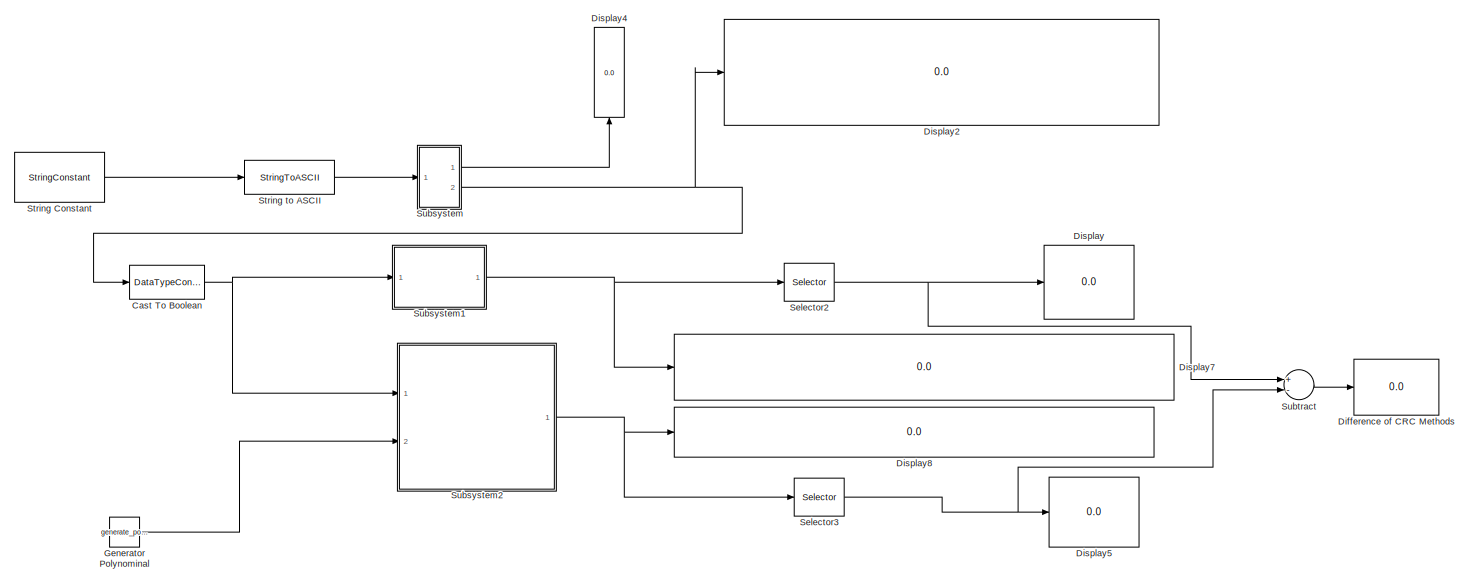
[diagram: root canvas - part 1/2, full width, top band]
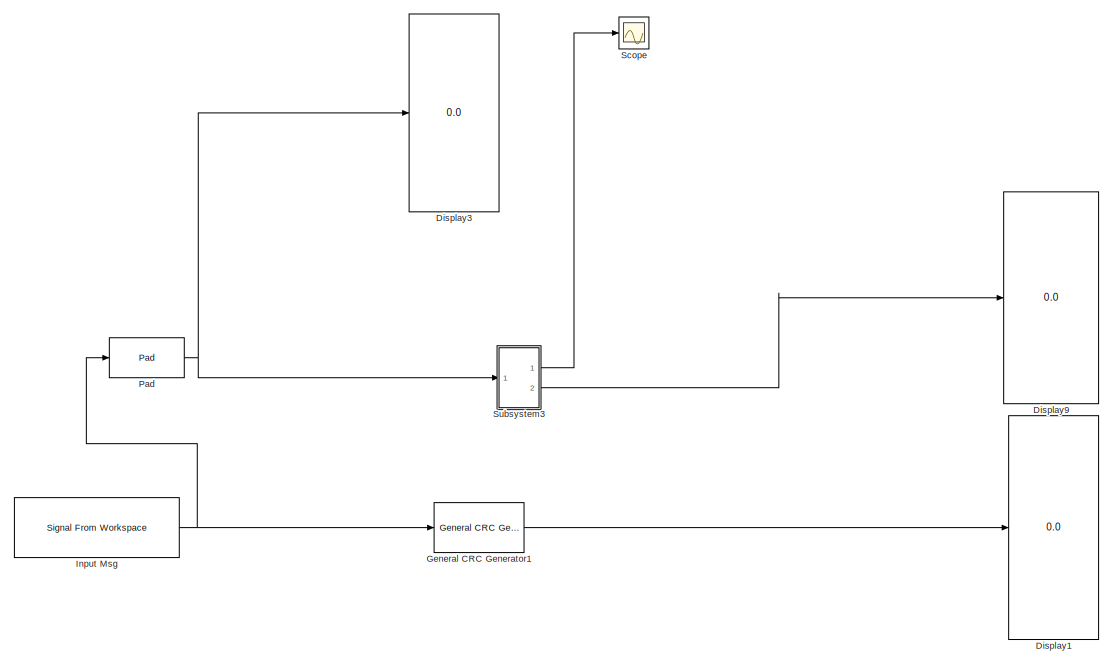
[diagram: root canvas - part 2/2, full width, bottom band]
MODEL slx_5c14dfaccfbc
KIND model
CONFIG AbsTol = auto
CONFIG EnableMultiTasking = off
CONFIG FixedStep = auto
CONFIG MaxStep = auto
CONFIG MinStep = auto
CONFIG RelTol = 1e-3
CONFIG SampleTimeConstraint = Unconstrained
CONFIG Solver = VariableStepAuto
CONFIG SolverName = VariableStepAuto
CONFIG StartTime = 0.0
CONFIG StopTime = 7
BLOCK [DataTypeConversion] Cast To Boolean
  OutDataTypeStr = boolean
  RndMeth = Floor
  SaturateOnIntegerOverflow = off
BLOCK [Display] Difference of CRC Methods
  Decimation = 1
  Ports = [1]
BLOCK [Display] Display
  Decimation = 1
  Ports = [1]
BLOCK [Display] Display1
  Decimation = 1
  Ports = [1]
BLOCK [Display] Display2
  Decimation = 1
  Ports = [1]
BLOCK [Display] Display3
  Decimation = 1
  Ports = [1]
BLOCK [Display] Display4
  Decimation = 1
  Ports = [1]
BLOCK [Display] Display5
  Decimation = 1
  Ports = [1]
BLOCK [Display] Display7
  Decimation = 1
  Ports = [1]
BLOCK [Display] Display8
  Decimation = 1
  Ports = [1]
BLOCK [Display] Display9
  Decimation = 1
  Ports = [1]
BLOCK [Reference] General CRC Generator1  REF=commcrc2/General CRC
Generator
  Ports = [1, 1]
  SourceBlock = commcrc2/General CRC\nGenerator
  SourceProductBaseCode = CM
  SourceProductName = Communications Toolbox
  SourceType = General CRC Generator
BLOCK [Constant] Generator Polynominal
  Value = generate_polynomial
BLOCK [Reference] Input Msg   REF=dspsrcs4/Signal From
Workspace
  Ports = [0, 1]
  SourceBlock = dspsrcs4/Signal From\nWorkspace
  SourceProductBaseCode = DS
  SourceProductName = DSP System Toolbox
  SourceType = Signal From Workspace
BLOCK [Reference] Pad  REF=dspsigops/Pad
  Ports = [1, 1]
  SourceBlock = dspsigops/Pad
  SourceProductBaseCode = DS
  SourceProductName = DSP System Toolbox
  SourceType = Pad
BLOCK [Scope] Scope
  Floating = off
  NumInputPorts = 1
  Ports = [1]
  ScopeSpecificationString = Simulink.scopes.TimeScopeBlockCfg('CurrentConfiguration', extmgr.ConfigurationSet(extmgr.Configuration('Core','General UI',true),extmgr.Configuration('Core','Source UI',true),extmgr.Configuration('Sources','WiredSimulink',true),extmgr.Configuration('Visuals','Time Domain',true,'SerializedDisplays',{struct('MinYLimReal','-0.125','MaxYLimReal','1.125','YLabelReal','','MinYLimMag','0.00000','MaxYLimM...<+1320ch>
BLOCK [Selector] Selector2
  IndexOptions = Index vector (dialog)
  Indices = [data_length+1:data_length+3]
  InputPortWidth = data_length+3
  OutputSizes = 1
  Ports = [1, 1]
BLOCK [Selector] Selector3
  IndexOptions = Index vector (dialog)
  Indices = [data_length+1:data_length+3]
  InputPortWidth = 10+3
  OutputSizes = 1
  Ports = [1, 1]
BLOCK [StringConstant] String Constant
  String = "HKL"
BLOCK [StringToASCII] String to ASCII
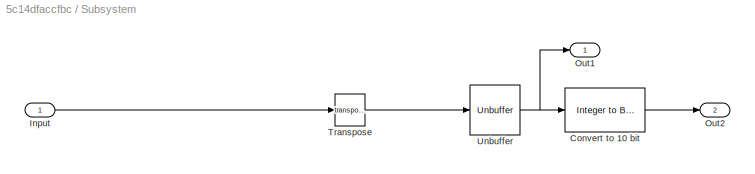
BLOCK [SubSystem] Subsystem
  Ports = [1, 2]
  RequestExecContextInheritance = off
  TreatAsAtomicUnit = on
BLOCK [Reference] Subsystem/Convert to 10 bit  REF=commutil2/Integer to Bit
Converter
  Ports = [1, 1]
  SourceBlock = commutil2/Integer to Bit\nConverter
  SourceProductBaseCode = CM
  SourceProductName = Communications Toolbox
  SourceType = Integer to Bit Converter
BLOCK [Inport] Subsystem/Input
  IconDisplay = Port number
BLOCK [Outport] Subsystem/Out1
  IconDisplay = Port number
BLOCK [Outport] Subsystem/Out2
  IconDisplay = Port number
  Port = 2
BLOCK [Math] Subsystem/Transpose
  Operator = transpose
  Ports = [1, 1]
BLOCK [Unbuffer] Subsystem/Unbuffer
  Ports = [1, 1]
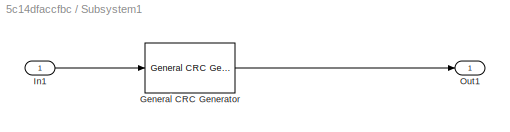
BLOCK [SubSystem] Subsystem1
  Ports = [1, 1]
  RequestExecContextInheritance = off
  TreatAsAtomicUnit = on
BLOCK [Reference] Subsystem1/General CRC Generator  REF=commcrc2/General CRC
Generator
  Ports = [1, 1]
  SourceBlock = commcrc2/General CRC\nGenerator
  SourceProductBaseCode = CM
  SourceProductName = Communications Toolbox
  SourceType = General CRC Generator
BLOCK [Inport] Subsystem1/In1
  IconDisplay = Port number
BLOCK [Outport] Subsystem1/Out1
  IconDisplay = Port number
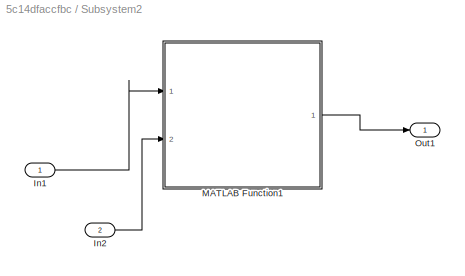
BLOCK [SubSystem] Subsystem2
  Ports = [2, 1]
  RequestExecContextInheritance = off
  TreatAsAtomicUnit = on
BLOCK [Inport] Subsystem2/In1
  IconDisplay = Port number
BLOCK [Inport] Subsystem2/In2
  IconDisplay = Port number
  Port = 2
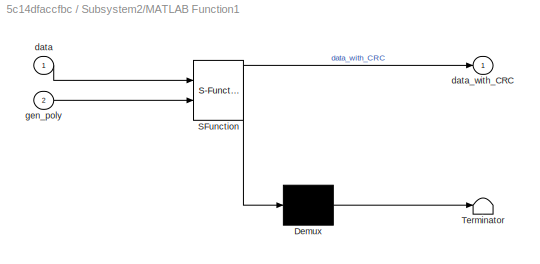
BLOCK [SubSystem] Subsystem2/MATLAB Function1
  ErrorFcn = Stateflow.Translate.translate
  PermitHierarchicalResolution = ExplicitOnly
  Ports = [2, 1]
  RequestExecContextInheritance = off
  SFBlockType = MATLAB Function
  TreatAsAtomicUnit = on
BLOCK [Demux] Subsystem2/MATLAB Function1/ Demux 
  Outputs = 1
  Ports = [1, 1]
BLOCK [S-Function] Subsystem2/MATLAB Function1/ SFunction 
  EnableBusSupport = on
  FunctionName = sf_sfun
  PortCounts = [2 2]
  Ports = [2, 2]
  SFcnIsStateOwnerBlock = off
  SFunctionDeploymentMode = off
  Tag = Stateflow S-Function CRC_Test_2 1
BLOCK [Terminator] Subsystem2/MATLAB Function1/ Terminator 
BLOCK [Inport] Subsystem2/MATLAB Function1/data
  IconDisplay = Port number
BLOCK [Outport] Subsystem2/MATLAB Function1/data_with_CRC
  IconDisplay = Port number
BLOCK [Inport] Subsystem2/MATLAB Function1/gen_poly
  IconDisplay = Port number
  Port = 2
BLOCK [Outport] Subsystem2/Out1
  IconDisplay = Port number
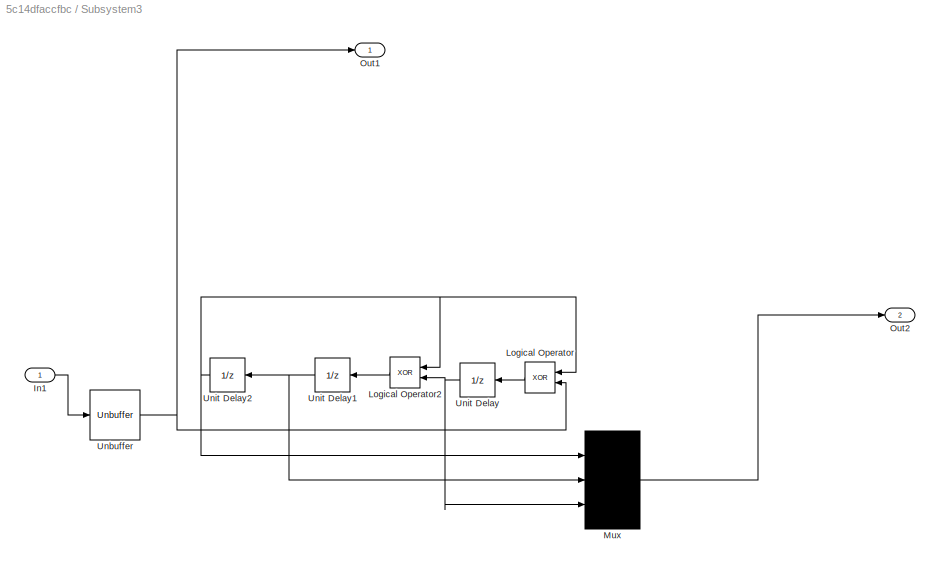
BLOCK [SubSystem] Subsystem3
  Ports = [1, 2]
  RequestExecContextInheritance = off
  TreatAsAtomicUnit = on
BLOCK [Inport] Subsystem3/In1
  IconDisplay = Port number
BLOCK [Logic] Subsystem3/Logical Operator
  AllPortsSameDT = off
  Operator = XOR
  OutDataTypeStr = boolean
  Ports = [2, 1]
BLOCK [Logic] Subsystem3/Logical Operator2
  AllPortsSameDT = off
  Operator = XOR
  OutDataTypeStr = boolean
  Ports = [2, 1]
BLOCK [Mux] Subsystem3/Mux
  Inputs = 3
  Ports = [3, 1]
BLOCK [Outport] Subsystem3/Out1
  IconDisplay = Port number
BLOCK [Outport] Subsystem3/Out2
  IconDisplay = Port number
  Port = 2
BLOCK [Unbuffer] Subsystem3/Unbuffer
  Ports = [1, 1]
BLOCK [UnitDelay] Subsystem3/Unit Delay
  HasFrameUpgradeWarning = on
  SampleTime = -1
BLOCK [UnitDelay] Subsystem3/Unit Delay1
  HasFrameUpgradeWarning = on
  SampleTime = -1
BLOCK [UnitDelay] Subsystem3/Unit Delay2
  HasFrameUpgradeWarning = on
  SampleTime = -1
BLOCK [Sum] Subtract
  InputSameDT = off
  Inputs = +-
  OutDataTypeStr = Inherit: Inherit via internal rule
  Ports = [2, 1]
  SaturateOnIntegerOverflow = off
NET Cast To Boolean:1 -> Subsystem1:1, Subsystem2:1
LINE General CRC Generator1:1 -> Display1:1
LINE Generator Polynominal:1 -> Subsystem2:2
NET Input Msg :1 -> General CRC Generator1:1, Pad:1
NET Pad:1 -> Display3:1, Subsystem3:1
NET Selector2:1 -> Display:1, Subtract:1
NET Selector3:1 -> Display5:1, Subtract:2
LINE String Constant:1 -> String to ASCII:1
LINE String to ASCII:1 -> Subsystem:1
LINE Subsystem/Convert to 10 bit:1 -> Subsystem/Out2:1
LINE Subsystem/Input:1 -> Subsystem/Transpose:1
LINE Subsystem/Transpose:1 -> Subsystem/Unbuffer:1
NET Subsystem/Unbuffer:1 -> Subsystem/Convert to 10 bit:1, Subsystem/Out1:1
LINE Subsystem1/General CRC Generator:1 -> Subsystem1/Out1:1
LINE Subsystem1/In1:1 -> Subsystem1/General CRC Generator:1
NET Subsystem1:1 -> Display7:1, Selector2:1
LINE Subsystem2/In1:1 -> Subsystem2/MATLAB Function1:1
LINE Subsystem2/In2:1 -> Subsystem2/MATLAB Function1:2
LINE Subsystem2/MATLAB Function1:1 -> Subsystem2/Out1:1
NET Subsystem2:1 -> Display8:1, Selector3:1
LINE Subsystem3/In1:1 -> Subsystem3/Unbuffer:1
LINE Subsystem3/Logical Operator2:1 -> Subsystem3/Unit Delay1:1
LINE Subsystem3/Logical Operator:1 -> Subsystem3/Unit Delay:1
LINE Subsystem3/Mux:1 -> Subsystem3/Out2:1
NET Subsystem3/Unbuffer:1 -> Subsystem3/Logical Operator:2, Subsystem3/Out1:1
NET Subsystem3/Unit Delay1:1 -> Subsystem3/Mux:2, Subsystem3/Unit Delay2:1
NET Subsystem3/Unit Delay2:1 -> Subsystem3/Logical Operator2:1, Subsystem3/Logical Operator:1, Subsystem3/Mux:1
NET Subsystem3/Unit Delay:1 -> Subsystem3/Logical Operator2:2, Subsystem3/Mux:3
LINE Subsystem3:1 -> Scope:1
LINE Subsystem3:2 -> Display9:1
LINE Subsystem:1 -> Display4:1
NET Subsystem:2 -> Cast To Boolean:1, Display2:1
LINE Subtract:1 -> Difference of CRC Methods:1
note: NET lines group one-source signal fan-out (src -> all destinations, sorted); 1:1 wires keep LINE
CHART Subsystem2/MATLAB Function1 states=1 transitions=1
  STATE_LABEL 'eML_blk_kernel()'
  STATE_LABEL 'SCRIPT:\n%data: row vector of logical 1 and 0 bits\n% gen_poly: row vector  representing the polynom\n\nfunction data_with_CRC = CRC_Generator(data,gen_poly)\ndata_length=length(data);\nCRC_length = length(gen_poly)-1;\nCRC_Code = zeros(CRC_length,1);\nindex = 1;\nzrs = zeros(CRC_length+1,1);\ndata_append=[logical(data); zrs];\ncurrent_data = data_append(index:CRC_length+index);\ntmp=zeros(CRC_length+1,1);\ntm...<+1056ch>'
